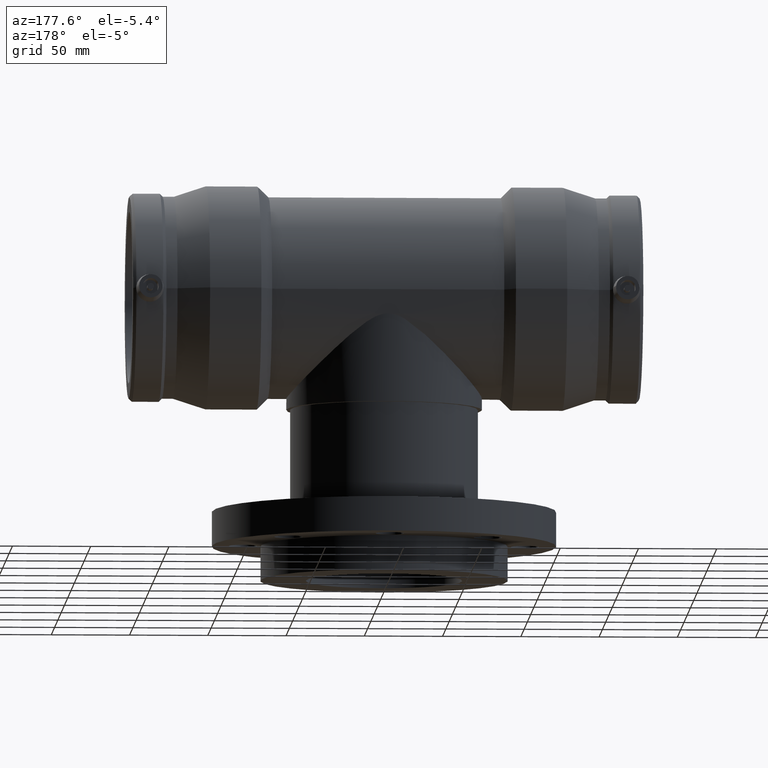
[diagram: clean part render]
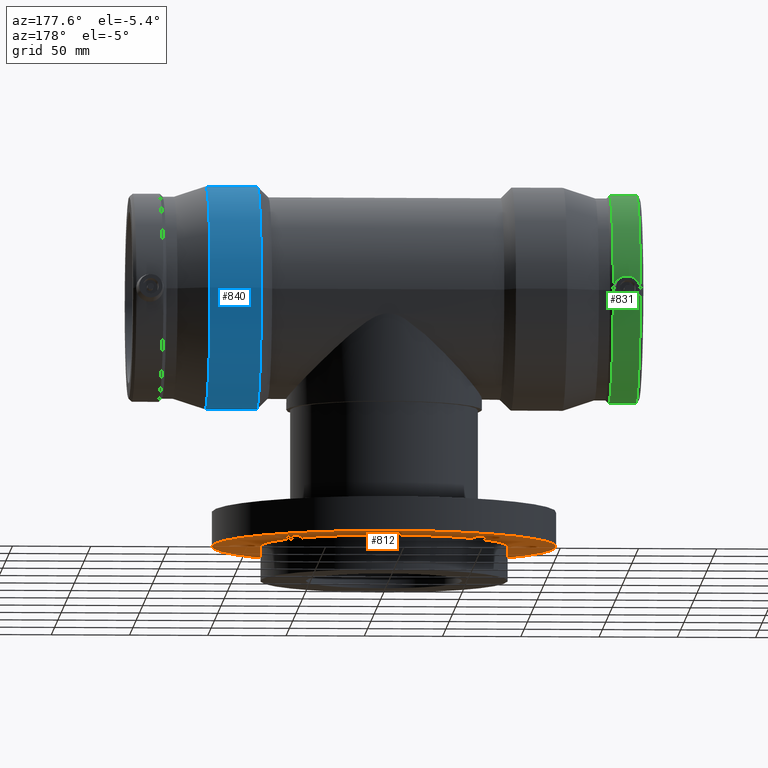
[diagram: same view with three faces highlighted in distinct colors, each labeled with its STEP entity id]
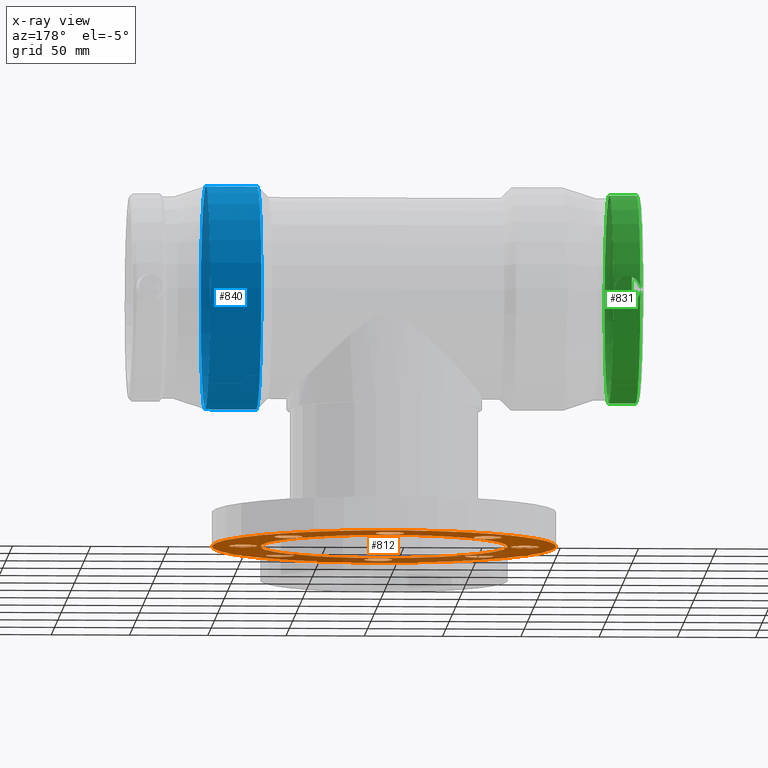
[diagram: x-ray of the same camera — body ghosted, the three highlighted faces saturated]
A machine part, auxiliary view with three faces highlighted in distinct colors.
The next image is the same camera in x-ray (body ghosted, the three faces saturated) — at least one of them is partly hidden behind the body in this view.
Their STEP definitions:

[orange] entity #812 — the highlighted planar face has unit normal (-0, 0, -1).
#56=FACE_BOUND('',#320,.T.);
#57=FACE_BOUND('',#321,.T.);
#58=FACE_BOUND('',#322,.T.);
#59=FACE_BOUND('',#323,.T.);
#60=FACE_BOUND('',#324,.T.);
#61=FACE_BOUND('',#325,.T.);
#62=FACE_BOUND('',#326,.T.);
#63=FACE_BOUND('',#327,.T.);
#64=FACE_BOUND('',#328,.T.);
#104=CIRCLE('',#863,9.);
#106=CIRCLE('',#866,9.);
#108=CIRCLE('',#869,9.);
#110=CIRCLE('',#872,9.);
#112=CIRCLE('',#875,9.);
#114=CIRCLE('',#878,9.);
#116=CIRCLE('',#881,9.);
#118=CIRCLE('',#884,9.);
#125=CIRCLE('',#898,79.);
#128=CIRCLE('',#904,110.);
#227=FACE_OUTER_BOUND('',#319,.T.);
#319=EDGE_LOOP('',(#656));
#320=EDGE_LOOP('',(#657));
#321=EDGE_LOOP('',(#658));
#322=EDGE_LOOP('',(#659));
#323=EDGE_LOOP('',(#660));
#324=EDGE_LOOP('',(#661));
#325=EDGE_LOOP('',(#662));
#326=EDGE_LOOP('',(#663));
#327=EDGE_LOOP('',(#664));
#328=EDGE_LOOP('',(#665));
#441=VERTEX_POINT('',#1606);
#443=VERTEX_POINT('',#1611);
#445=VERTEX_POINT('',#1616);
#447=VERTEX_POINT('',#1621);
#449=VERTEX_POINT('',#1626);
#451=VERTEX_POINT('',#1631);
#453=VERTEX_POINT('',#1636);
#455=VERTEX_POINT('',#1641);
#463=VERTEX_POINT('',#1753);
#466=VERTEX_POINT('',#1762);
#521=EDGE_CURVE('',#441,#441,#104,.T.);
#523=EDGE_CURVE('',#443,#443,#106,.T.);
#525=EDGE_CURVE('',#445,#445,#108,.T.);
#527=EDGE_CURVE('',#447,#447,#110,.T.);
#529=EDGE_CURVE('',#449,#449,#112,.T.);
#531=EDGE_CURVE('',#451,#451,#114,.T.);
#533=EDGE_CURVE('',#453,#453,#116,.T.);
#535=EDGE_CURVE('',#455,#455,#118,.T.);
#543=EDGE_CURVE('',#463,#463,#125,.T.);
#546=EDGE_CURVE('',#466,#466,#128,.T.);
#656=ORIENTED_EDGE('',*,*,#546,.T.);
#657=ORIENTED_EDGE('',*,*,#521,.T.);
#658=ORIENTED_EDGE('',*,*,#523,.T.);
#659=ORIENTED_EDGE('',*,*,#525,.T.);
#660=ORIENTED_EDGE('',*,*,#527,.T.);
#661=ORIENTED_EDGE('',*,*,#529,.T.);
#662=ORIENTED_EDGE('',*,*,#531,.T.);
#663=ORIENTED_EDGE('',*,*,#533,.T.);
#664=ORIENTED_EDGE('',*,*,#535,.T.);
#665=ORIENTED_EDGE('',*,*,#543,.T.);
#780=PLANE('',#905);
#812=ADVANCED_FACE('',(#227,#56,#57,#58,#59,#60,#61,#62,#63,#64),#780,.T.);
#863=AXIS2_PLACEMENT_3D('',#1607,#1005,#1006);
#866=AXIS2_PLACEMENT_3D('',#1612,#1011,#1012);
#869=AXIS2_PLACEMENT_3D('',#1617,#1017,#1018);
#872=AXIS2_PLACEMENT_3D('',#1622,#1023,#1024);
#875=AXIS2_PLACEMENT_3D('',#1627,#1029,#1030);
#878=AXIS2_PLACEMENT_3D('',#1632,#1035,#1036);
#881=AXIS2_PLACEMENT_3D('',#1637,#1041,#1042);
#884=AXIS2_PLACEMENT_3D('',#1642,#1047,#1048);
#898=AXIS2_PLACEMENT_3D('',#1754,#1075,#1076);
#904=AXIS2_PLACEMENT_3D('',#1763,#1087,#1088);
#905=AXIS2_PLACEMENT_3D('',#1764,#1089,#1090);
#1005=DIRECTION('center_axis',(1.22464679914735E-16,0.,1.));
#1006=DIRECTION('ref_axis',(0.707106781186547,0.707106781186548,6.15388486029117E-17));
#1011=DIRECTION('center_axis',(1.22464679914735E-16,0.,1.));
#1012=DIRECTION('ref_axis',(-1.2335811384724E-16,1.,2.10106771512886E-16));
#1017=DIRECTION('center_axis',(1.22464679914735E-16,0.,1.));
#1018=DIRECTION('ref_axis',(-0.707106781186548,0.707106781186547,3.58674694422859E-16));
#1023=DIRECTION('center_axis',(1.22464679914735E-16,0.,1.));
#1024=DIRECTION('ref_axis',(-1.,-1.2335811384724E-16,4.20213543025771E-16));
#1029=DIRECTION('center_axis',(1.22464679914735E-16,0.,1.));
#1030=DIRECTION('ref_axis',(-0.707106781186547,-0.707106781186548,3.58674694422859E-16));
#1035=DIRECTION('center_axis',(1.22464679914735E-16,0.,1.));
#1036=DIRECTION('ref_axis',(3.78702988737208E-33,-1.,2.10106771512885E-16));
#1041=DIRECTION('center_axis',(1.22464679914735E-16,0.,1.));
#1042=DIRECTION('ref_axis',(0.707106781186548,-0.707106781186547,6.15388486029116E-17));
#1047=DIRECTION('center_axis',(1.22464679914735E-16,0.,1.));
#1048=DIRECTION('ref_axis',(1.,0.,0.));
#1075=DIRECTION('center_axis',(1.22464679914735E-16,0.,1.));
#1076=DIRECTION('ref_axis',(-1.,0.,0.));
#1087=DIRECTION('center_axis',(-1.22464679914735E-16,0.,-1.));
#1088=DIRECTION('ref_axis',(1.,0.,-1.22464679914735E-16));
#1089=DIRECTION('center_axis',(-1.22464679914735E-16,0.,-1.));
#1090=DIRECTION('ref_axis',(-1.,0.,0.));
#1606=CARTESIAN_POINT('',(-70.0035713374682,-70.0035713374682,-159.));
#1607=CARTESIAN_POINT('Origin',(-63.6396103067893,-63.6396103067893,-159.));
#1611=CARTESIAN_POINT('',(-5.98555032972756E-15,-99.,-159.));
#1612=CARTESIAN_POINT('Origin',(-5.98555032972756E-15,-90.,-159.));
#1616=CARTESIAN_POINT('',(70.0035713374682,-70.0035713374682,-159.));
#1617=CARTESIAN_POINT('Origin',(63.6396103067893,-63.6396103067893,-159.));
#1621=CARTESIAN_POINT('',(99.,1.21949558067087E-14,-159.));
#1622=CARTESIAN_POINT('Origin',(89.9999999999999,1.21949558067087E-14,-159.));
#1626=CARTESIAN_POINT('',(70.0035713374682,70.0035713374682,-159.));
#1627=CARTESIAN_POINT('Origin',(63.6396103067893,63.6396103067893,-159.));
#1631=CARTESIAN_POINT('',(-2.37491187237301E-14,99.,-159.));
#1632=CARTESIAN_POINT('Origin',(-3.26309029207313E-14,90.,-159.));
#1636=CARTESIAN_POINT('',(-70.0035713374682,70.0035713374682,-159.));
#1637=CARTESIAN_POINT('Origin',(-63.6396103067893,63.6396103067893,-159.));
#1641=CARTESIAN_POINT('',(-99.,1.10218211923262E-15,-159.));
#1642=CARTESIAN_POINT('Origin',(-90.,0.,-159.));
#1753=CARTESIAN_POINT('',(-79.,0.,-159.));
#1754=CARTESIAN_POINT('Origin',(-1.94718841064429E-14,0.,-159.));
#1762=CARTESIAN_POINT('',(-110.,0.,-159.));
#1763=CARTESIAN_POINT('Origin',(-1.94718841064429E-14,0.,-159.));
#1764=CARTESIAN_POINT('Origin',(-65.,0.,-159.));

[blue] entity #840 — the highlighted cylindrical surface (bore or boss wall) has radius 71.5 mm, axis along (1, 0, 0).
#85=FACE_BOUND('',#377,.T.);
#155=CIRCLE('',#959,71.5);
#156=CIRCLE('',#961,71.5);
#198=CYLINDRICAL_SURFACE('',#960,71.5);
#255=FACE_OUTER_BOUND('',#376,.T.);
#376=EDGE_LOOP('',(#735));
#377=EDGE_LOOP('',(#736));
#495=VERTEX_POINT('',#1947);
#496=VERTEX_POINT('',#1950);
#583=EDGE_CURVE('',#495,#495,#155,.T.);
#584=EDGE_CURVE('',#496,#496,#156,.T.);
#735=ORIENTED_EDGE('',*,*,#583,.T.);
#736=ORIENTED_EDGE('',*,*,#584,.F.);
#840=ADVANCED_FACE('',(#255,#85),#198,.T.);
#959=AXIS2_PLACEMENT_3D('',#1948,#1197,#1198);
#960=AXIS2_PLACEMENT_3D('',#1949,#1199,#1200);
#961=AXIS2_PLACEMENT_3D('',#1951,#1201,#1202);
#1197=DIRECTION('center_axis',(1.,0.,0.));
#1198=DIRECTION('ref_axis',(0.,0.,-1.));
#1199=DIRECTION('center_axis',(1.,0.,0.));
#1200=DIRECTION('ref_axis',(0.,1.,0.));
#1201=DIRECTION('center_axis',(1.,0.,0.));
#1202=DIRECTION('ref_axis',(0.,0.,-1.));
#1947=CARTESIAN_POINT('',(81.315,71.5,0.));
#1948=CARTESIAN_POINT('Origin',(81.315,0.,0.));
#1949=CARTESIAN_POINT('Origin',(97.7075,0.,0.));
#1950=CARTESIAN_POINT('',(114.1,71.5,0.));
#1951=CARTESIAN_POINT('Origin',(114.1,0.,0.));

[green] entity #831 — the highlighted cylindrical surface (partial cylindrical patch) has radius 66.495 mm, axis along (1, 0, 0).
#147=CIRCLE('',#943,66.495);
#148=CIRCLE('',#944,66.495);
#195=CYLINDRICAL_SURFACE('',#942,66.495);
#246=FACE_OUTER_BOUND('',#359,.T.);
#359=EDGE_LOOP('',(#712,#713,#714,#715,#716));
#425=B_SPLINE_CURVE_WITH_KNOTS('',3,(#1886,#1887,#1888,#1889,#1890,#1891,
#1892,#1893,#1894,#1895),.UNSPECIFIED.,.F.,.F.,(4,2,2,2,4),(5.30732139785311,
5.63925467218214,5.97118794651117,6.30266984691378,6.49515131905109),
 .UNSPECIFIED.);
#426=B_SPLINE_CURVE_WITH_KNOTS('',3,(#1896,#1897,#1898,#1899,#1900,#1901,
#1902,#1903,#1904,#1905),.UNSPECIFIED.,.F.,.F.,(4,2,2,2,4),(4.11949147665512,
4.31197294879243,4.64345484919504,4.97538812352407,5.30732139785311),
 .UNSPECIFIED.);
#427=B_SPLINE_CURVE_WITH_KNOTS('',3,(#1906,#1907,#1908,#1909,#1910,#1911,
#1912,#1913,#1914,#1915,#1916,#1917,#1918,#1919,#1920,#1921,#1922,#1923),
 .UNSPECIFIED.,.F.,.F.,(4,2,2,2,2,2,2,2,4),(1.46583077772857,1.65831224986588,
1.98979415026849,2.32172742459752,2.65366069892655,2.98559397325558,3.31752724758462,
3.64900914798722,3.84149062012454),.UNSPECIFIED.);
#484=VERTEX_POINT('',#1865);
#485=VERTEX_POINT('',#1866);
#486=VERTEX_POINT('',#1875);
#487=VERTEX_POINT('',#1876);
#488=VERTEX_POINT('',#1885);
#572=EDGE_CURVE('',#488,#486,#425,.T.);
#573=EDGE_CURVE('',#484,#488,#426,.T.);
#574=EDGE_CURVE('',#487,#485,#427,.T.);
#575=EDGE_CURVE('',#485,#484,#147,.T.);
#576=EDGE_CURVE('',#487,#486,#148,.T.);
#712=ORIENTED_EDGE('',*,*,#574,.T.);
#713=ORIENTED_EDGE('',*,*,#575,.T.);
#714=ORIENTED_EDGE('',*,*,#573,.T.);
#715=ORIENTED_EDGE('',*,*,#572,.T.);
#716=ORIENTED_EDGE('',*,*,#576,.F.);
#831=ADVANCED_FACE('',(#246),#195,.T.);
#942=AXIS2_PLACEMENT_3D('',#1924,#1163,#1164);
#943=AXIS2_PLACEMENT_3D('',#1925,#1165,#1166);
#944=AXIS2_PLACEMENT_3D('',#1926,#1167,#1168);
#1163=DIRECTION('center_axis',(1.,0.,0.));
#1164=DIRECTION('ref_axis',(0.,1.,0.));
#1165=DIRECTION('center_axis',(1.,0.,0.));
#1166=DIRECTION('ref_axis',(0.,0.,-1.));
#1167=DIRECTION('center_axis',(1.,0.,0.));
#1168=DIRECTION('ref_axis',(0.,0.,-1.));
#1865=CARTESIAN_POINT('',(-161.005149999538,66.4799046119833,-1.41679490472735));
#1866=CARTESIAN_POINT('',(-161.005149999538,66.4799046119833,1.4167949047273));
#1875=CARTESIAN_POINT('',(-143.69485,66.4799046119106,-1.41679490092012));
#1876=CARTESIAN_POINT('',(-143.69485,66.4799046119106,1.41679490092012));
#1885=CARTESIAN_POINT('',(-152.35,65.907397237327,-8.82043164483393));
#1886=CARTESIAN_POINT('Ctrl Pts',(-152.35,65.9073972373269,-8.82043164483393));
#1887=CARTESIAN_POINT('Ctrl Pts',(-151.243555752237,65.9073972373269,-8.82043164483393));
#1888=CARTESIAN_POINT('Ctrl Pts',(-150.065051372748,65.9385047281811,-8.5968943038254));
#1889=CARTESIAN_POINT('Ctrl Pts',(-147.901032645472,66.0502156277954,-7.69168447984535));
#1890=CARTESIAN_POINT('Ctrl Pts',(-146.915385013028,66.1291443466962,-7.01012474216769));
#1891=CARTESIAN_POINT('Ctrl Pts',(-145.362526559014,66.2765565525366,-5.44260469881843));
#1892=CARTESIAN_POINT('Ctrl Pts',(-144.690780629847,66.3546689981732,-4.45217469181368));
#1893=CARTESIAN_POINT('Ctrl Pts',(-143.986754776889,66.4415931510995,-2.73810766127561));
#1894=CARTESIAN_POINT('Ctrl Pts',(-143.8017034899,66.4658307052663,-2.07718122121157));
#1895=CARTESIAN_POINT('Ctrl Pts',(-143.69485,66.4799046119106,-1.41679490092012));
#1896=CARTESIAN_POINT('Ctrl Pts',(-161.005149999388,66.47990461183,-1.41679490469983));
#1897=CARTESIAN_POINT('Ctrl Pts',(-160.898296509204,66.4658307051492,-2.07718122494439));
#1898=CARTESIAN_POINT('Ctrl Pts',(-160.713245223111,66.4415931510995,-2.73810766127561));
#1899=CARTESIAN_POINT('Ctrl Pts',(-160.009219370153,66.3546689981732,-4.45217469181368));
#1900=CARTESIAN_POINT('Ctrl Pts',(-159.337473440986,66.2765565525366,-5.44260469881843));
#1901=CARTESIAN_POINT('Ctrl Pts',(-157.784614986972,66.1291443466962,-7.01012474216769));
#1902=CARTESIAN_POINT('Ctrl Pts',(-156.798967354528,66.0502156277954,-7.69168447984535));
#1903=CARTESIAN_POINT('Ctrl Pts',(-154.634948627252,65.9385047281811,-8.5968943038254));
#1904=CARTESIAN_POINT('Ctrl Pts',(-153.456444247763,65.9073972373269,-8.82043164483393));
#1905=CARTESIAN_POINT('Ctrl Pts',(-152.35,65.9073972373269,-8.82043164483393));
#1906=CARTESIAN_POINT('Ctrl Pts',(-143.69485,66.4799046119106,1.41679490092012));
#1907=CARTESIAN_POINT('Ctrl Pts',(-143.8017034899,66.4658307052663,2.07718122121158));
#1908=CARTESIAN_POINT('Ctrl Pts',(-143.986754776889,66.4415931510995,2.73810766127563));
#1909=CARTESIAN_POINT('Ctrl Pts',(-144.690780629847,66.3546689981732,4.4521746918137));
#1910=CARTESIAN_POINT('Ctrl Pts',(-145.362526559014,66.2765565525366,5.44260469881843));
#1911=CARTESIAN_POINT('Ctrl Pts',(-146.915385013028,66.1291443466962,7.01012474216769));
#1912=CARTESIAN_POINT('Ctrl Pts',(-147.901032645472,66.0502156277954,7.69168447984535));
#1913=CARTESIAN_POINT('Ctrl Pts',(-150.065051372748,65.9385047281811,8.59689430382541));
#1914=CARTESIAN_POINT('Ctrl Pts',(-151.243555752237,65.9073972373269,8.82043164483394));
#1915=CARTESIAN_POINT('Ctrl Pts',(-153.456444247763,65.9073972373269,8.82043164483394));
#1916=CARTESIAN_POINT('Ctrl Pts',(-154.634948627252,65.9385047281811,8.59689430382541));
#1917=CARTESIAN_POINT('Ctrl Pts',(-156.798967354528,66.0502156277954,7.69168447984536));
#1918=CARTESIAN_POINT('Ctrl Pts',(-157.784614986972,66.1291443466962,7.01012474216769));
#1919=CARTESIAN_POINT('Ctrl Pts',(-159.337473440986,66.2765565525366,5.44260469881843));
#1920=CARTESIAN_POINT('Ctrl Pts',(-160.009219370153,66.3546689981732,4.4521746918137));
#1921=CARTESIAN_POINT('Ctrl Pts',(-160.713245223111,66.4415931510995,2.73810766127562));
#1922=CARTESIAN_POINT('Ctrl Pts',(-160.898296509204,66.4658307051492,2.07718122494433));
#1923=CARTESIAN_POINT('Ctrl Pts',(-161.005149999388,66.47990461183,1.41679490469977));
#1924=CARTESIAN_POINT('Origin',(-152.35,0.,0.));
#1925=CARTESIAN_POINT('Origin',(-161.00515,0.,0.));
#1926=CARTESIAN_POINT('Origin',(-143.69485,0.,0.));